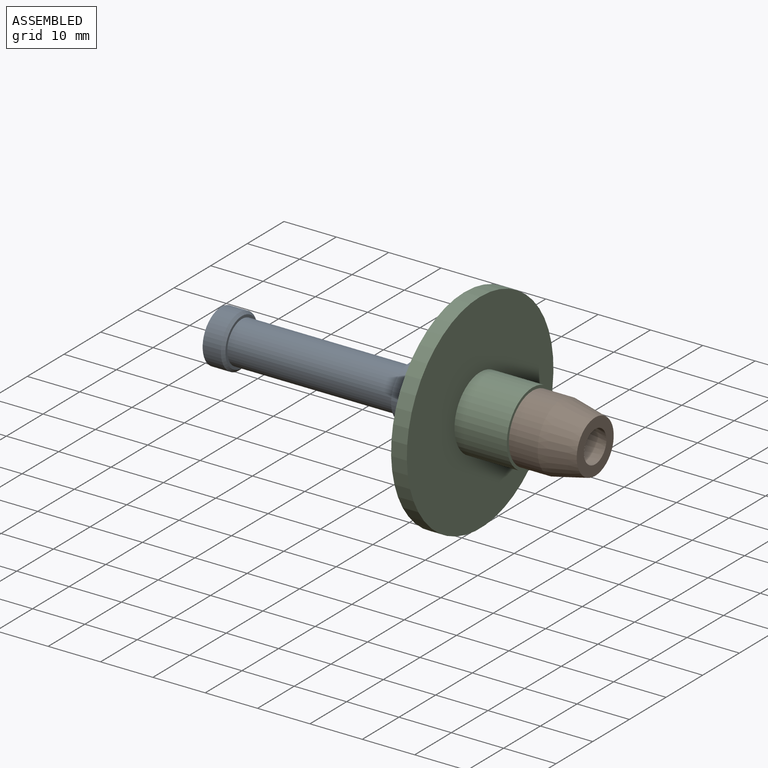
[diagram: assembled view]
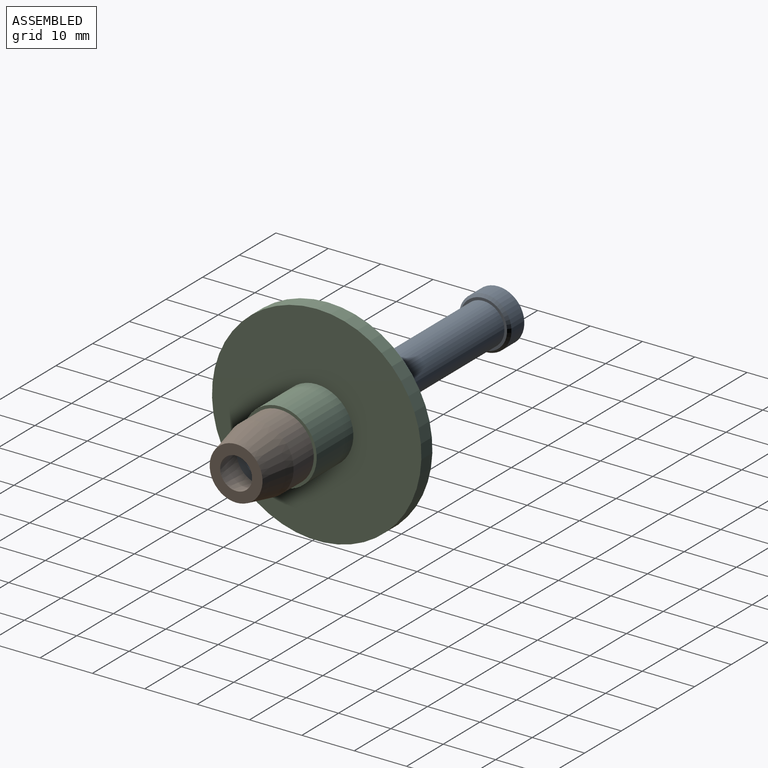
[diagram: assembled view, second angle]
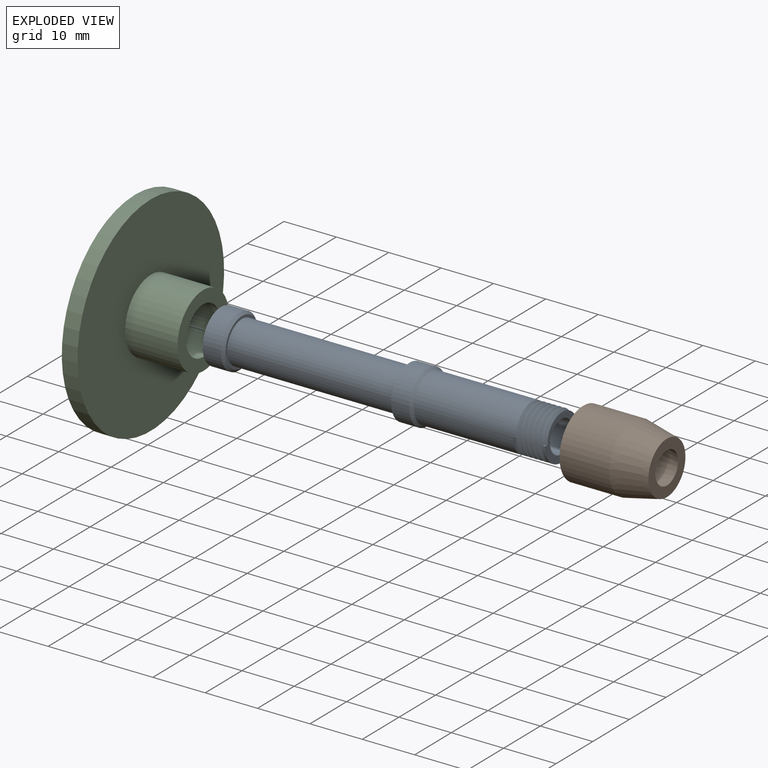
[diagram: exploded view]
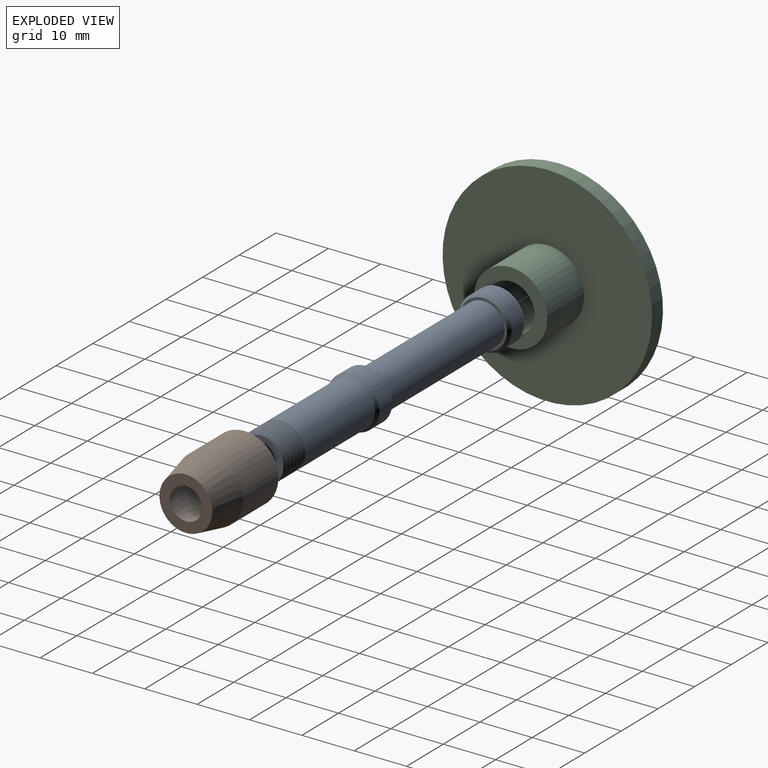
[diagram: exploded view, second angle]
ASSEMBLY  parts=3 mates=2
PART A: 22 faces, bbox 66.1x10.6x11 mm
  f0: cylinder r=4.5mm len=20.1mm, axis (-1,0,0), area 543mm2, adj f1,f9,f10,f11,f14,f21
  f1: cylinder r=4.5mm len=9mm, axis (-1,0,0), area 2.8mm2, adj f0,f2,f9,f11
  f2: cylinder r=4.5mm len=9mm, axis (-1,0,0), area 2.8mm2, adj f1,f3,f9,f11
  f3: cylinder r=4.5mm len=9mm, axis (-1,0,0), area 2.8mm2, adj f2,f4,f9,f11
  f4: cylinder r=4.5mm len=9mm, axis (-1,0,0), area 2.8mm2, adj f3,f5,f9,f11
  f5: cylinder r=4.5mm len=9mm, axis (-1,0,0), area 5.6mm2, adj f4,f6,f8,f9,f11
  f6: plane 9.6x9.27mm, normal (1,0,0), area 29.7mm2, adj f5,f7,f8,f9
  f7: cylinder r=3.05mm len=56mm, axis (-1,0,0), area 1073.2mm2, adj f6,f12
  f8: plane 0.78x0.45mm, normal (0,0,1), area 0.2mm2, adj f5,f6,f11
  f9: bspline ~10.39x9mm, area 134.2mm2, adj f0,f1,f2,f3,f4,f5,f6,f10
  f10: plane 0.78x0.45mm, normal (0,0,-1), area 0.2mm2, adj f0,f9,f14
  f11: bspline ~10.39x9mm, area 134.2mm2, adj f0,f1,f2,f3,f4,f5,f8,f9
  f12: plane 6.1x6.1mm, normal (1,0,0), area 29.2mm2, adj f7
  f13: plane 10x10mm, normal (-1,0,0), area 78.5mm2, adj f19
  f14: plane 9.36x5.1mm, normal (1,0,0), area 4.7mm2, adj f0,f10,f11
  f15: cylinder r=5mm len=10mm, axis (1,0,0), area 110mm2, adj f16,f21
  f16: plane 10x10mm, normal (-1,0,0), area 28.3mm2, adj f15,f17
  f17: cylinder r=4mm len=32mm, axis (1,0,0), area 804.2mm2, adj f16,f18
  f18: plane 9x9mm, normal (1,0,0), area 13.4mm2, adj f17,f20
  f19: cylinder r=5mm len=10mm, axis (1,0,0), area 110mm2, adj f13,f20
  f20: cone r=4.5mm half-angle=45deg, axis (-1,0,0), area 21.1mm2, adj f18,f19
  f21: cone r=4.5mm half-angle=45deg, axis (-1,0,0), area 21.1mm2, adj f0,f15
PART B: 6 faces, bbox 16x12.9x12.9 mm
  f0: cylinder r=6.45mm len=12.9mm, axis (-1,0,0), area 385.8mm2, adj f1,f5
  f1: plane 12.9x12.9mm, normal (1,0,0), area 68.5mm2, adj f0,f2
  f2: cylinder r=4.45mm len=9.52mm, axis (-1,0,0), area 266.2mm2, adj f1,f3
  f3: cone r=4.45mm half-angle=12.2deg, axis (1,0,0), area 156.2mm2, adj f2,f4
  f4: plane 10.1x10.1mm, normal (-1,0,0), area 50.9mm2, adj f3,f5
  f5: cone r=5.05mm half-angle=12.2deg, axis (1,0,0), area 239.5mm2, adj f0,f4
PART C: 8 faces, bbox 19.5x40x40 mm
  f0: cylinder r=20mm len=40mm, axis (-1,0,0), area 377mm2, adj f2,f3
  f1: cylinder r=4.55mm len=19.5mm, axis (-1,0,0), area 557.5mm2, adj f5,f7
  f2: plane 40x40mm, normal (1,0,0), area 1102.7mm2, adj f0,f6
  f3: plane 40x40mm, normal (-1,0,0), area 1102.7mm2, adj f0,f4
  f4: cylinder r=7mm len=14mm, axis (1,0,0), area 439.8mm2, adj f3,f5
  f5: plane 14x14mm, normal (-1,0,0), area 88.9mm2, adj f1,f4
  f6: cylinder r=7mm len=14mm, axis (-1,0,0), area 285.9mm2, adj f2,f7
  f7: plane 14x14mm, normal (1,0,0), area 88.9mm2, adj f1,f6
PLACE A t=(12.46,2.19,-7.28)mm
PLACE B rot(axis=(0,1,0),180deg) t=(63.79,2.19,-7.28)mm
PLACE C rot(axis=(0,1,0),180deg) t=(61.96,2.19,-7.28)mm
MATE fastened C.f1 <-> A.f0  axis (-1,0,0) through (52.46,2.19,-7.28)mm
MATE fastened B.f0 <-> A.f7  axis (1,0,0) through (77.46,2.19,-7.28)mm
